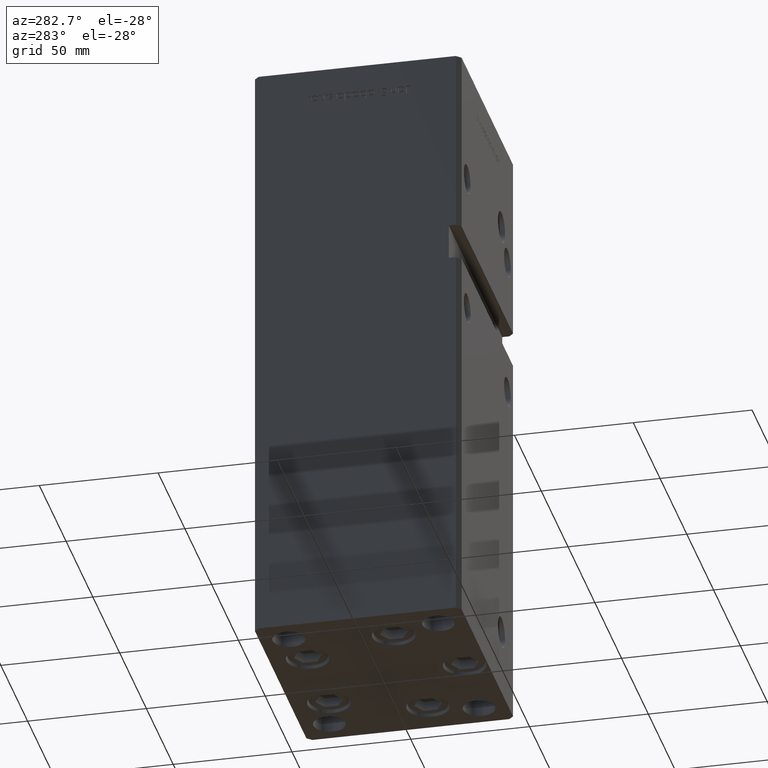
[diagram: clean part render]
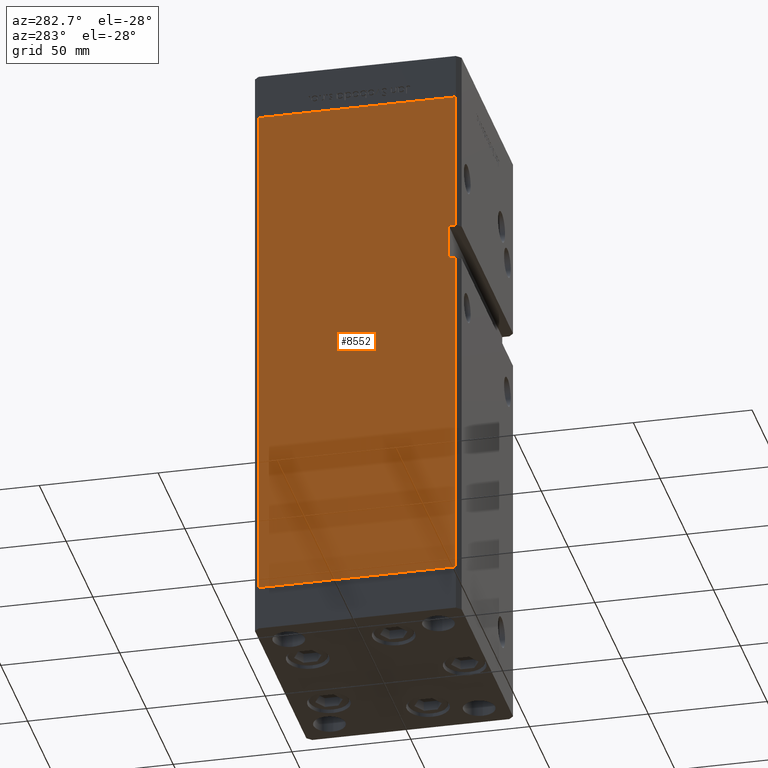
[diagram: same view with one face highlighted and labeled with its STEP entity id]
A machine part, auxiliary view. The second image highlights one B-rep face of the part: STEP entity #8552.
In plain terms, the highlighted planar face has unit normal (1, 0, 0).
Its self-contained STEP definition (entity closure, byte-faithful):
#234 = VECTOR ( 'NONE', #28148, 1000.000000000000000 ) ;
#1089 = LINE ( 'NONE', #9406, #23461 ) ;
#2002 = DIRECTION ( 'NONE',  ( 3.344045254895050973E-16, -1.000000000000000000, 0.000000000000000000 ) ) ;
#2250 = PLANE ( 'NONE',  #9170 ) ;
#6647 = ORIENTED_EDGE ( 'NONE', *, *, #10528, .F. ) ;
#8011 = EDGE_CURVE ( 'NONE', #10703, #34669, #43745, .T. ) ;
#8552 = ADVANCED_FACE ( 'NONE', ( #30456 ), #2250, .F. ) ;
#9170 = AXIS2_PLACEMENT_3D ( 'NONE', #38526, #51168, #10048 ) ;
#9406 = CARTESIAN_POINT ( 'NONE',  ( -49.99999999999998579, -41.49999999999999289, 218.5000000000000000 ) ) ;
#10048 = DIRECTION ( 'NONE',  ( -3.344045254895050480E-16, 1.000000000000000000, 0.000000000000000000 ) ) ;
#10442 = ORIENTED_EDGE ( 'NONE', *, *, #8011, .F. ) ;
#10528 = EDGE_CURVE ( 'NONE', #13596, #26612, #16605, .T. ) ;
#10703 = VERTEX_POINT ( 'NONE', #18710 ) ;
#10958 = LINE ( 'NONE', #35663, #234 ) ;
#11260 = VECTOR ( 'NONE', #2002, 1000.000000000000000 ) ;
#11762 = ORIENTED_EDGE ( 'NONE', *, *, #19496, .F. ) ;
#12121 = CARTESIAN_POINT ( 'NONE',  ( -49.99999999999998579, -41.49999999999999289, 218.5000000000000000 ) ) ;
#12574 = ORIENTED_EDGE ( 'NONE', *, *, #50250, .T. ) ;
#13235 = DIRECTION ( 'NONE',  ( -0.000000000000000000, -1.000000000000000000, -0.000000000000000000 ) ) ;
#13596 = VERTEX_POINT ( 'NONE', #21932 ) ;
#13603 = ORIENTED_EDGE ( 'NONE', *, *, #21724, .F. ) ;
#14352 = CARTESIAN_POINT ( 'NONE',  ( -49.99999999999998579, -41.49999999999999289, 0.000000000000000000 ) ) ;
#14530 = VERTEX_POINT ( 'NONE', #41804 ) ;
#15794 = DIRECTION ( 'NONE',  ( 0.000000000000000000, 0.000000000000000000, -1.000000000000000000 ) ) ;
#16605 = LINE ( 'NONE', #52887, #22098 ) ;
#17415 = VERTEX_POINT ( 'NONE', #12121 ) ;
#17867 = LINE ( 'NONE', #34231, #11260 ) ;
#18059 = VECTOR ( 'NONE', #13235, 1000.000000000000000 ) ;
#18710 = CARTESIAN_POINT ( 'NONE',  ( -49.99999999999998579, -38.50000000000000000, 159.0000000000000000 ) ) ;
#19170 = VERTEX_POINT ( 'NONE', #24561 ) ;
#19312 = CARTESIAN_POINT ( 'NONE',  ( -49.99999999999998579, -38.50000000000000000, 159.0000000000000000 ) ) ;
#19321 = LINE ( 'NONE', #19587, #38693 ) ;
#19496 = EDGE_CURVE ( 'NONE', #34669, #13596, #49222, .T. ) ;
#19587 = CARTESIAN_POINT ( 'NONE',  ( -50.00000000000001421, 41.49999999999999289, 218.5000000000000000 ) ) ;
#20300 = VECTOR ( 'NONE', #15794, 1000.000000000000000 ) ;
#20990 = ORIENTED_EDGE ( 'NONE', *, *, #52602, .F. ) ;
#21213 = EDGE_CURVE ( 'NONE', #14530, #19170, #19321, .T. ) ;
#21724 = EDGE_CURVE ( 'NONE', #14530, #17415, #17867, .T. ) ;
#21932 = CARTESIAN_POINT ( 'NONE',  ( -49.99999999999998579, -41.49999999999999289, 144.0000000000000284 ) ) ;
#22039 = DIRECTION ( 'NONE',  ( -0.000000000000000000, -0.000000000000000000, -1.000000000000000000 ) ) ;
#22098 = VECTOR ( 'NONE', #48845, 1000.000000000000000 ) ;
#23461 = VECTOR ( 'NONE', #22039, 1000.000000000000000 ) ;
#23481 = EDGE_CURVE ( 'NONE', #10703, #25187, #33644, .T. ) ;
#24561 = CARTESIAN_POINT ( 'NONE',  ( -50.00000000000001421, 41.49999999999999289, 0.000000000000000000 ) ) ;
#25187 = VERTEX_POINT ( 'NONE', #48467 ) ;
#25739 = ORIENTED_EDGE ( 'NONE', *, *, #21213, .T. ) ;
#26612 = VERTEX_POINT ( 'NONE', #14352 ) ;
#28148 = DIRECTION ( 'NONE',  ( 3.344045254895050973E-16, -1.000000000000000000, 0.000000000000000000 ) ) ;
#28517 = DIRECTION ( 'NONE',  ( -0.000000000000000000, -1.000000000000000000, -0.000000000000000000 ) ) ;
#30456 = FACE_OUTER_BOUND ( 'NONE', #40121, .T. ) ;
#33644 = LINE ( 'NONE', #50059, #18059 ) ;
#33782 = CARTESIAN_POINT ( 'NONE',  ( -49.99999999999998579, -38.50000000000000000, 144.0000000000000284 ) ) ;
#34231 = CARTESIAN_POINT ( 'NONE',  ( -50.00000000000001421, 41.49999999999999289, 218.5000000000000000 ) ) ;
#34669 = VERTEX_POINT ( 'NONE', #33782 ) ;
#35663 = CARTESIAN_POINT ( 'NONE',  ( -50.00000000000001421, 41.49999999999999289, 0.000000000000000000 ) ) ;
#35786 = ORIENTED_EDGE ( 'NONE', *, *, #23481, .T. ) ;
#37820 = VECTOR ( 'NONE', #28517, 1000.000000000000000 ) ;
#38526 = CARTESIAN_POINT ( 'NONE',  ( -50.00000000000001421, 41.49999999999999289, 218.5000000000000000 ) ) ;
#38693 = VECTOR ( 'NONE', #39457, 1000.000000000000000 ) ;
#39457 = DIRECTION ( 'NONE',  ( -0.000000000000000000, -0.000000000000000000, -1.000000000000000000 ) ) ;
#40121 = EDGE_LOOP ( 'NONE', ( #6647, #11762, #10442, #35786, #20990, #13603, #25739, #12574 ) ) ;
#41804 = CARTESIAN_POINT ( 'NONE',  ( -50.00000000000001421, 41.49999999999999289, 218.5000000000000000 ) ) ;
#43745 = LINE ( 'NONE', #19312, #20300 ) ;
#45970 = CARTESIAN_POINT ( 'NONE',  ( -49.99999999999998579, -38.50000000000000000, 144.0000000000000284 ) ) ;
#48467 = CARTESIAN_POINT ( 'NONE',  ( -49.99999999999998579, -41.49999999999999289, 159.0000000000000000 ) ) ;
#48845 = DIRECTION ( 'NONE',  ( -0.000000000000000000, -0.000000000000000000, -1.000000000000000000 ) ) ;
#49222 = LINE ( 'NONE', #45970, #37820 ) ;
#50059 = CARTESIAN_POINT ( 'NONE',  ( -49.99999999999998579, -38.50000000000000000, 159.0000000000000000 ) ) ;
#50250 = EDGE_CURVE ( 'NONE', #19170, #26612, #10958, .T. ) ;
#51168 = DIRECTION ( 'NONE',  ( 1.000000000000000000, 3.344045254895050480E-16, -0.000000000000000000 ) ) ;
#52602 = EDGE_CURVE ( 'NONE', #17415, #25187, #1089, .T. ) ;
#52887 = CARTESIAN_POINT ( 'NONE',  ( -49.99999999999998579, -41.49999999999999289, 218.5000000000000000 ) ) ;